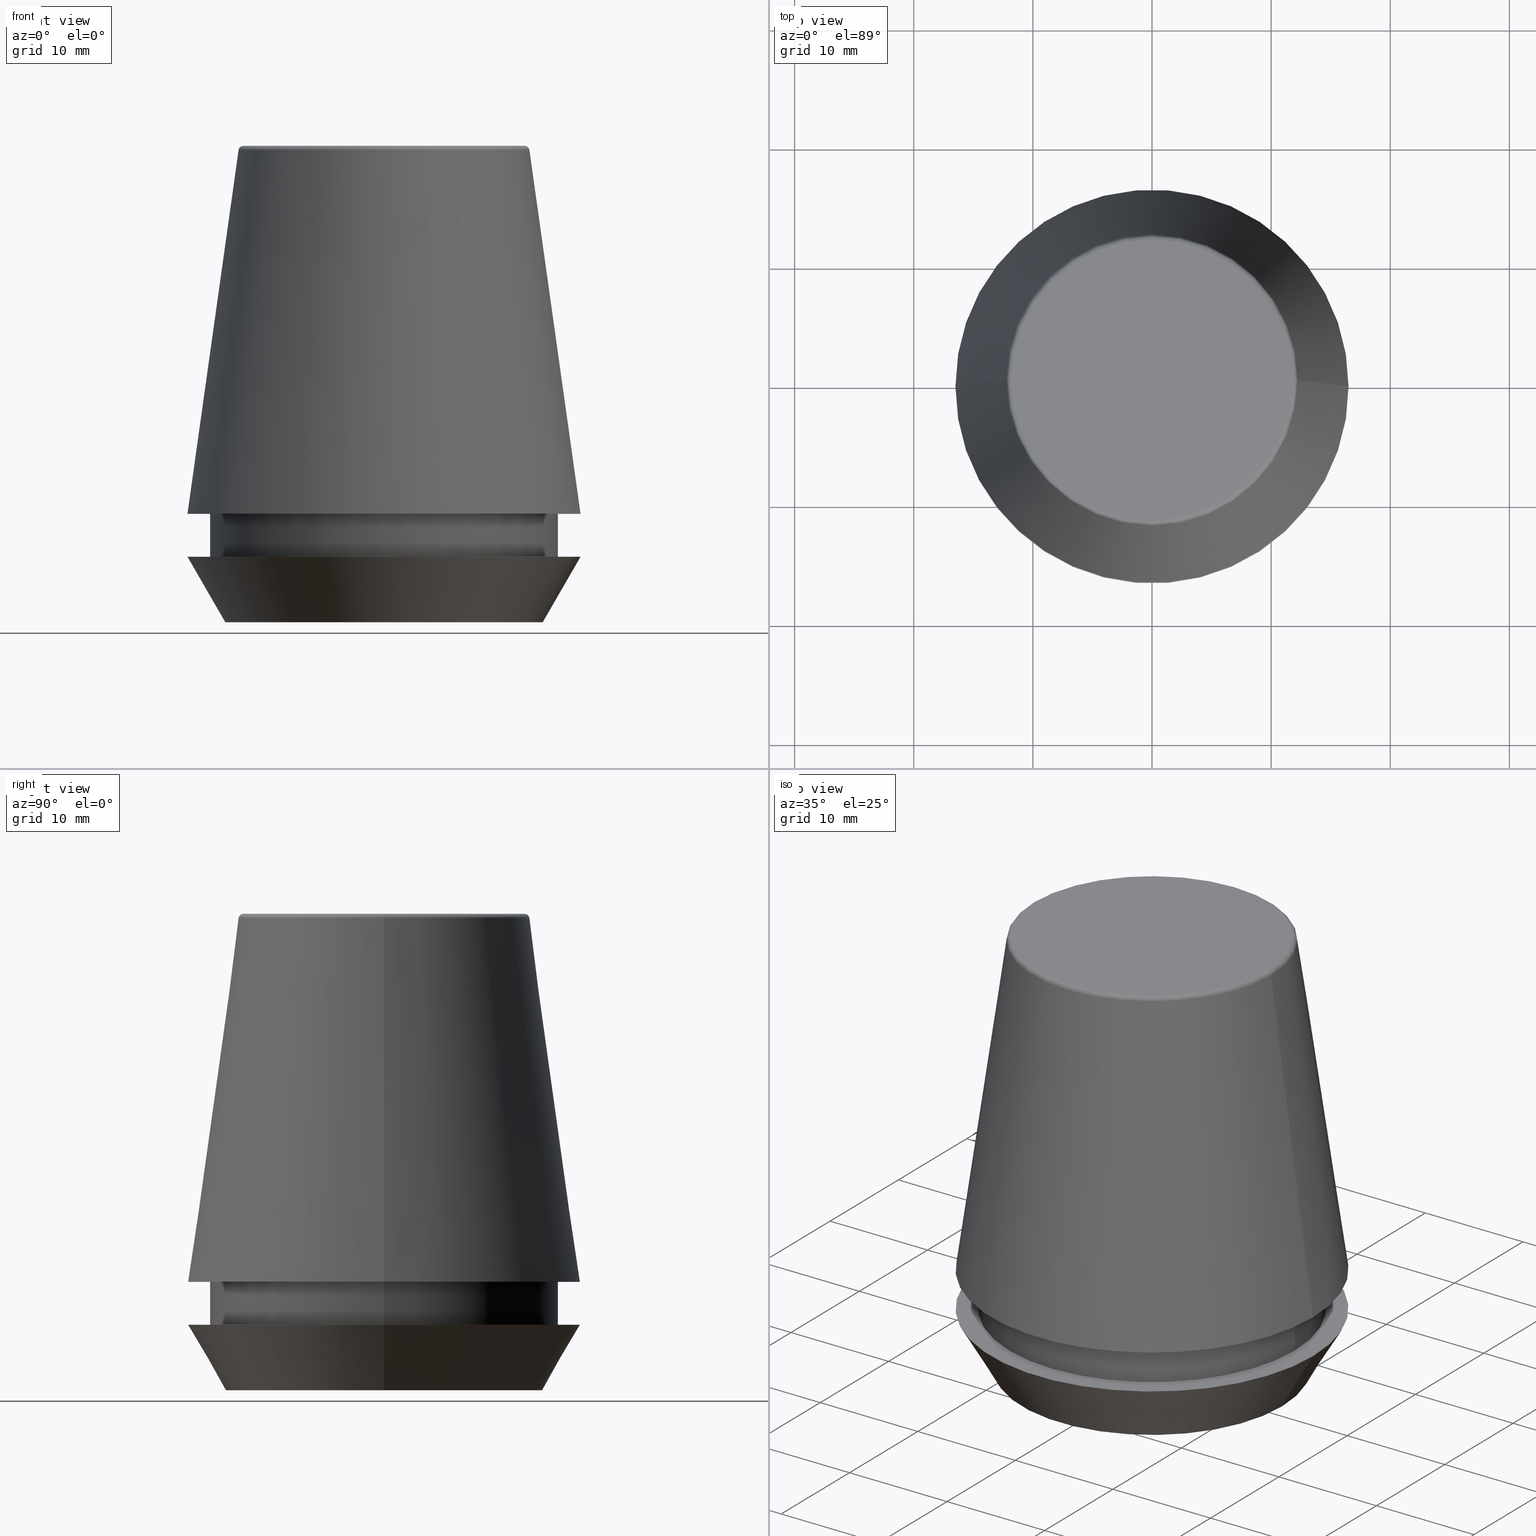
[diagram: canonical four-view strip — front | top / right | iso, engineering-drawing reading convention]
A machine part, canonical four-view strip (front | top / right | iso — engineering-drawing reading convention). The complete STEP part file that produces these views, byte-faithful:
ISO-10303-21;
HEADER;
FILE_DESCRIPTION (( 'STEP AP203' ),
    '1' );
FILE_NAME ('TAP COLLET ER 32G  4.5 X 3.4.STEP',
    '2019-04-09T10:44:10',
    ( '' ),
    ( '' ),
    'SwSTEP 2.0',
    'SolidWorks 2014',
    '' );
FILE_SCHEMA (( 'CONFIG_CONTROL_DESIGN' ));
ENDSEC;

DATA;
#1 = EDGE_LOOP ( 'NONE', ( #369, #69 ) ) ;
#2 = CIRCLE ( 'NONE', #347, 14.60000000000000000 ) ;
#3 = CIRCLE ( 'NONE', #355, 16.50000000000000000 ) ;
#4 = PRODUCT_RELATED_PRODUCT_CATEGORY ( 'detail', '', ( #312 ) ) ;
#5 = CARTESIAN_POINT ( 'NONE',  ( -11.80989888411031400, 1.446295486667959300E-015, 39.60000000000000100 ) ) ;
#6 = CYLINDRICAL_SURFACE ( 'NONE', #127, 14.60000000000000000 ) ;
#7 = UNCERTAINTY_MEASURE_WITH_UNIT (LENGTH_MEASURE( 1.000000000000000100E-005 ), #16, 'distance_accuracy_value', 'NONE');
#8 = ORIENTED_EDGE ( 'NONE', *, *, #207, .T. ) ;
#9 = ORIENTED_EDGE ( 'NONE', *, *, #250, .F. ) ;
#10 = DIRECTION ( 'NONE',  ( 0.0000000000000000000, 0.0000000000000000000, -1.000000000000000000 ) ) ;
#11 = ORIENTED_EDGE ( 'NONE', *, *, #143, .T. ) ;
#12 = AXIS2_PLACEMENT_3D ( 'NONE', #77, #336, #301 ) ;
#13 = SECURITY_CLASSIFICATION_LEVEL ( 'unclassified' ) ;
#14 = CARTESIAN_POINT ( 'NONE',  ( 0.0000000000000000000, 0.0000000000000000000, 0.0000000000000000000 ) ) ;
#15 = CARTESIAN_POINT ( 'NONE',  ( 0.0000000000000000000, 0.0000000000000000000, 0.0000000000000000000 ) ) ;
#16 =( LENGTH_UNIT ( ) NAMED_UNIT ( * ) SI_UNIT ( .MILLI., .METRE. ) );
#17 = DIRECTION ( 'NONE',  ( 1.000000000000000000, 0.0000000000000000000, 0.0000000000000000000 ) ) ;
#18 = CARTESIAN_POINT ( 'NONE',  ( 13.32457351945710200, 0.0000000000000000000, 0.0000000000000000000 ) ) ;
#19 = EDGE_CURVE ( 'NONE', #27, #129, #202, .T. ) ;
#20 = APPLICATION_PROTOCOL_DEFINITION ( 'international standard', 'config_control_design', 1994, #200 ) ;
#21 = PERSON_AND_ORGANIZATION ( #126, #102 ) ;
#22 = EDGE_CURVE ( 'NONE', #27, #234, #117, .T. ) ;
#23 = EDGE_LOOP ( 'NONE', ( #9, #97 ) ) ;
#24 = DIRECTION ( 'NONE',  ( -1.000000000000000000, 1.224646799147352500E-016, 0.0000000000000000000 ) ) ;
#25 = ADVANCED_FACE ( 'NONE', ( #273, #328 ), #227, .F. ) ;
#26 = DIRECTION ( 'NONE',  ( 1.000000000000000000, 0.0000000000000000000, 0.0000000000000000000 ) ) ;
#27 = VERTEX_POINT ( 'NONE', #106 ) ;
#28 = ADVANCED_FACE ( 'NONE', ( #31 ), #252, .T. ) ;
#29 = AXIS2_PLACEMENT_3D ( 'NONE', #73, #275, #105 ) ;
#30 = CARTESIAN_POINT ( 'NONE',  ( 12.20600611160694300, 1.757755848304969800E-015, 39.65566924038402900 ) ) ;
#31 = FACE_OUTER_BOUND ( 'NONE', #344, .T. ) ;
#32 = ADVANCED_FACE ( 'NONE', ( #109 ), #325, .T. ) ;
#33 = AXIS2_PLACEMENT_3D ( 'NONE', #108, #299, #135 ) ;
#34 = SECURITY_CLASSIFICATION ( '', '', #13 ) ;
#35 = CARTESIAN_POINT ( 'NONE',  ( 0.0000000000000000000, 0.0000000000000000000, 0.0000000000000000000 ) ) ;
#36 = DIRECTION ( 'NONE',  ( 1.000000000000000000, 0.0000000000000000000, 0.0000000000000000000 ) ) ;
#37 = VECTOR ( 'NONE', #49, 999.9999999999998900 ) ;
#38 = ORIENTED_EDGE ( 'NONE', *, *, #191, .F. ) ;
#39 = AXIS2_PLACEMENT_3D ( 'NONE', #79, #278, #111 ) ;
#40 = APPROVAL_DATE_TIME ( #120, #341 ) ;
#41 = EDGE_CURVE ( 'NONE', #234, #148, #266, .T. ) ;
#42 = CC_DESIGN_PERSON_AND_ORGANIZATION_ASSIGNMENT ( #339, #365, ( #160 ) ) ;
#43 = CARTESIAN_POINT ( 'NONE',  ( -14.60000000000000000, 1.787984326755135800E-015, 9.099999999999997900 ) ) ;
#44 = VERTEX_POINT ( 'NONE', #45 ) ;
#45 = CARTESIAN_POINT ( 'NONE',  ( -16.50032537154048700, 0.0000000000000000000, 9.099999999999997900 ) ) ;
#46 = DATE_TIME_ROLE ( 'classification_date' ) ;
#47 = AXIS2_PLACEMENT_3D ( 'NONE', #366, #48, #258 ) ;
#48 = DIRECTION ( 'NONE',  ( 0.0000000000000000000, -0.0000000000000000000, 1.000000000000000000 ) ) ;
#49 = DIRECTION ( 'NONE',  ( 0.4999999999999947300, 0.0000000000000000000, 0.8660254037844418200 ) ) ;
#50 =( NAMED_UNIT ( * ) SI_UNIT ( $, .STERADIAN. ) SOLID_ANGLE_UNIT ( ) );
#51 = PRODUCT_DEFINITION ( 'UNKNOWN', '', #160, #326 ) ;
#52 = APPROVAL_PERSON_ORGANIZATION ( #128, #341, #168 ) ;
#53 = APPROVAL_ROLE ( '' ) ;
#54 = EDGE_LOOP ( 'NONE', ( #213, #112, #103, #96 ) ) ;
#55 = EDGE_LOOP ( 'NONE', ( #271, #306, #337, #295 ) ) ;
#56 = COORDINATED_UNIVERSAL_TIME_OFFSET ( 5, 30, .AHEAD. ) ;
#57 = CC_DESIGN_PERSON_AND_ORGANIZATION_ASSIGNMENT ( #21, #371, ( #312 ) ) ;
#58 = AXIS2_PLACEMENT_3D ( 'NONE', #342, #264, #284 ) ;
#59 = ADVANCED_FACE ( 'NONE', ( #334 ), #153, .F. ) ;
#60 = COORDINATED_UNIVERSAL_TIME_OFFSET ( 5, 30, .AHEAD. ) ;
#61 = DIRECTION ( 'NONE',  ( -0.0000000000000000000, -0.0000000000000000000, 1.000000000000000000 ) ) ;
#62 = AXIS2_PLACEMENT_3D ( 'NONE', #14, #277, #256 ) ;
#63 = DIRECTION ( 'NONE',  ( -0.1391731009600586900, 0.0000000000000000000, -0.9902680687415712500 ) ) ;
#64 = ORIENTED_EDGE ( 'NONE', *, *, #154, .T. ) ;
#65 = LOCAL_TIME ( 16, 14, 10.00000000000000000, #140 ) ;
#66 = DIRECTION ( 'NONE',  ( 0.0000000000000000000, 0.0000000000000000000, -1.000000000000000000 ) ) ;
#67 = AXIS2_PLACEMENT_3D ( 'NONE', #367, #198, #17 ) ;
#68 = LOCAL_TIME ( 16, 14, 10.00000000000000000, #176 ) ;
#69 = ORIENTED_EDGE ( 'NONE', *, *, #217, .F. ) ;
#70 = AXIS2_PLACEMENT_3D ( 'NONE', #335, #300, #137 ) ;
#71 = FACE_OUTER_BOUND ( 'NONE', #205, .T. ) ;
#72 = ORIENTED_EDGE ( 'NONE', *, *, #197, .F. ) ;
#73 = CARTESIAN_POINT ( 'NONE',  ( 0.0000000000000000000, 0.0000000000000000000, 39.65566924038402900 ) ) ;
#74 = CARTESIAN_POINT ( 'NONE',  ( 0.0000000000000000000, 0.0000000000000000000, 39.60000000000000100 ) ) ;
#75 = AXIS2_PLACEMENT_3D ( 'NONE', #375, #203, #26 ) ;
#76 = APPROVAL_ROLE ( '' ) ;
#77 = CARTESIAN_POINT ( 'NONE',  ( 0.0000000000000000000, 0.0000000000000000000, 39.60000000000000100 ) ) ;
#78 = APPLICATION_CONTEXT ( 'configuration controlled 3d designs of mechanical parts and assemblies' ) ;
#79 = CARTESIAN_POINT ( 'NONE',  ( 0.0000000000000000000, 0.0000000000000000000, 5.500000000000005300 ) ) ;
#80 = AXIS2_PLACEMENT_3D ( 'NONE', #113, #309, #141 ) ;
#81 = CIRCLE ( 'NONE', #33, 12.20600611160694300 ) ;
#82 = LINE ( 'NONE', #121, #91 ) ;
#83 = ORIENTED_EDGE ( 'NONE', *, *, #313, .F. ) ;
#84 = ORIENTED_EDGE ( 'NONE', *, *, #41, .T. ) ;
#85 = CARTESIAN_POINT ( 'NONE',  ( 0.0000000000000000000, 0.0000000000000000000, 5.500000000000005300 ) ) ;
#86 = DIRECTION ( 'NONE',  ( 0.1391731009600586900, 1.704378926181473100E-017, -0.9902680687415712500 ) ) ;
#87 = ORIENTED_EDGE ( 'NONE', *, *, #313, .T. ) ;
#88 = CC_DESIGN_PERSON_AND_ORGANIZATION_ASSIGNMENT ( #136, #167, ( #51 ) ) ;
#89 = CARTESIAN_POINT ( 'NONE',  ( -14.60000000000000000, 1.787984326755135800E-015, 5.500000000000005300 ) ) ;
#90 = AXIS2_PLACEMENT_3D ( 'NONE', #364, #10, #224 ) ;
#91 = VECTOR ( 'NONE', #63, 1000.000000000000000 ) ;
#92 = DIRECTION ( 'NONE',  ( -0.0000000000000000000, -0.0000000000000000000, 1.000000000000000000 ) ) ;
#93 = LINE ( 'NONE', #146, #158 ) ;
#94 = ADVANCED_FACE ( 'NONE', ( #95 ), #188, .T. ) ;
#95 = FACE_OUTER_BOUND ( 'NONE', #297, .T. ) ;
#96 = ORIENTED_EDGE ( 'NONE', *, *, #245, .F. ) ;
#97 = ORIENTED_EDGE ( 'NONE', *, *, #180, .F. ) ;
#98 = DIRECTION ( 'NONE',  ( -0.0000000000000000000, -0.0000000000000000000, 1.000000000000000000 ) ) ;
#99 = DIRECTION ( 'NONE',  ( 1.000000000000000000, 0.0000000000000000000, 0.0000000000000000000 ) ) ;
#100 = ORIENTED_EDGE ( 'NONE', *, *, #180, .T. ) ;
#101 = APPROVAL ( #230, 'UNSPECIFIED' ) ;
#102 = ORGANIZATION ( 'UNSPECIFIED', 'UNSPECIFIED', '' ) ;
#103 = ORIENTED_EDGE ( 'NONE', *, *, #170, .T. ) ;
#104 = DIRECTION ( 'NONE',  ( 0.0000000000000000000, 0.0000000000000000000, -1.000000000000000000 ) ) ;
#105 = DIRECTION ( 'NONE',  ( 1.000000000000000000, 0.0000000000000000000, 0.0000000000000000000 ) ) ;
#106 = CARTESIAN_POINT ( 'NONE',  ( 13.32457351945710200, 0.0000000000000000000, 0.0000000000000000000 ) ) ;
#107 = AXIS2_PLACEMENT_3D ( 'NONE', #15, #259, #169 ) ;
#108 = CARTESIAN_POINT ( 'NONE',  ( 0.0000000000000000000, 0.0000000000000000000, 39.65566924038402900 ) ) ;
#109 = FACE_OUTER_BOUND ( 'NONE', #358, .T. ) ;
#110 = DIRECTION ( 'NONE',  ( -0.0000000000000000000, -0.0000000000000000000, 1.000000000000000000 ) ) ;
#111 = DIRECTION ( 'NONE',  ( 1.000000000000000000, 0.0000000000000000000, 0.0000000000000000000 ) ) ;
#112 = ORIENTED_EDGE ( 'NONE', *, *, #316, .T. ) ;
#113 = CARTESIAN_POINT ( 'NONE',  ( 0.0000000000000000000, 0.0000000000000000000, 9.099999999999997900 ) ) ;
#114 = ORIENTED_EDGE ( 'NONE', *, *, #189, .F. ) ;
#115 = ADVANCED_FACE ( 'NONE', ( #177 ), #249, .T. ) ;
#116 = DIRECTION ( 'NONE',  ( 0.0000000000000000000, 0.0000000000000000000, -1.000000000000000000 ) ) ;
#117 = LINE ( 'NONE', #18, #37 ) ;
#118 = AXIS2_PLACEMENT_3D ( 'NONE', #165, #329, #104 ) ;
#119 = ORIENTED_EDGE ( 'NONE', *, *, #22, .T. ) ;
#120 = DATE_AND_TIME ( #201, #272 ) ;
#121 = CARTESIAN_POINT ( 'NONE',  ( -16.50032537154048700, 0.0000000000000000000, 9.099999999999997900 ) ) ;
#122 = DIRECTION ( 'NONE',  ( 1.000000000000000000, 0.0000000000000000000, 0.0000000000000000000 ) ) ;
#123 = DIRECTION ( 'NONE',  ( -0.0000000000000000000, -0.0000000000000000000, 1.000000000000000000 ) ) ;
#124 = APPROVAL_DATE_TIME ( #204, #361 ) ;
#125 = EDGE_LOOP ( 'NONE', ( #280, #270, #354, #255 ) ) ;
#126 = PERSON ( 'UNSPECIFIED', 'UNSPECIFIED', 'UNSPECIFIED', ('UNSPECIFIED'), ('UNSPECIFIED'), ('UNSPECIFIED') ) ;
#127 = AXIS2_PLACEMENT_3D ( 'NONE', #182, #345, #311 ) ;
#128 = PERSON_AND_ORGANIZATION ( #126, #102 ) ;
#129 = VERTEX_POINT ( 'NONE', #378 ) ;
#130 = ORIENTED_EDGE ( 'NONE', *, *, #170, .F. ) ;
#131 = APPROVAL_PERSON_ORGANIZATION ( #214, #361, #76 ) ;
#132 = AXIS2_PLACEMENT_3D ( 'NONE', #349, #184, #382 ) ;
#133 = DIRECTION ( 'NONE',  ( -1.000000000000000000, 0.0000000000000000000, -0.0000000000000000000 ) ) ;
#134 = DATE_TIME_ROLE ( 'creation_date' ) ;
#135 = DIRECTION ( 'NONE',  ( 1.000000000000000000, 0.0000000000000000000, 0.0000000000000000000 ) ) ;
#136 = PERSON_AND_ORGANIZATION ( #126, #102 ) ;
#137 = DIRECTION ( 'NONE',  ( 1.000000000000000000, 0.0000000000000000000, 0.0000000000000000000 ) ) ;
#138 = CIRCLE ( 'NONE', #29, 12.20600611160694300 ) ;
#139 = VERTEX_POINT ( 'NONE', #30 ) ;
#140 = COORDINATED_UNIVERSAL_TIME_OFFSET ( 5, 30, .AHEAD. ) ;
#141 = DIRECTION ( 'NONE',  ( 1.000000000000000000, 0.0000000000000000000, 0.0000000000000000000 ) ) ;
#142 = ADVANCED_FACE ( 'NONE', ( #161 ), #6, .T. ) ;
#143 = EDGE_CURVE ( 'NONE', #233, #246, #318, .T. ) ;
#144 = ADVANCED_FACE ( 'NONE', ( #305 ), #156, .T. ) ;
#145 = DIRECTION ( 'NONE',  ( -0.0000000000000000000, -0.0000000000000000000, 1.000000000000000000 ) ) ;
#146 = CARTESIAN_POINT ( 'NONE',  ( -14.60000000000000000, 1.787984326755135800E-015, 101.8074564848000400 ) ) ;
#147 = CIRCLE ( 'NONE', #67, 11.80989888411031400 ) ;
#148 = VERTEX_POINT ( 'NONE', #286 ) ;
#149 = DIRECTION ( 'NONE',  ( -0.0000000000000000000, -0.0000000000000000000, 1.000000000000000000 ) ) ;
#150 = ORIENTED_EDGE ( 'NONE', *, *, #189, .T. ) ;
#151 = DIRECTION ( 'NONE',  ( -1.000000000000000000, 0.0000000000000000000, 0.0000000000000000000 ) ) ;
#152 = EDGE_CURVE ( 'NONE', #246, #319, #315, .T. ) ;
#153 = PLANE ( 'NONE',  #327 ) ;
#154 = EDGE_CURVE ( 'NONE', #44, #385, #239, .T. ) ;
#155 = CC_DESIGN_DATE_AND_TIME_ASSIGNMENT ( #283, #46, ( #34 ) ) ;
#156 = CONICAL_SURFACE ( 'NONE', #265, 16.50032537154048700, 0.1396263401595395900 ) ;
#157 = CIRCLE ( 'NONE', #75, 11.80989888411031400 ) ;
#158 = VECTOR ( 'NONE', #240, 1000.000000000000000 ) ;
#159 = ORIENTED_EDGE ( 'NONE', *, *, #19, .F. ) ;
#160 = PRODUCT_DEFINITION_FORMATION_WITH_SPECIFIED_SOURCE ( 'ANY', '', #312, .NOT_KNOWN. ) ;
#161 = FACE_OUTER_BOUND ( 'NONE', #55, .T. ) ;
#162 = CLOSED_SHELL ( 'NONE', ( #32, #144, #142, #115, #376, #59, #28, #343, #236, #25, #94, #263 ) ) ;
#163 = VERTEX_POINT ( 'NONE', #192 ) ;
#164 = DIRECTION ( 'NONE',  ( -0.4999999999999947300, 6.123233995736700700E-017, 0.8660254037844418200 ) ) ;
#165 = CARTESIAN_POINT ( 'NONE',  ( 11.80989888411031400, 0.0000000000000000000, 39.60000000000000100 ) ) ;
#166 = MANIFOLD_SOLID_BREP ( 'Revolve1', #162 ) ;
#167 = PERSON_AND_ORGANIZATION_ROLE ( 'creator' ) ;
#168 = APPROVAL_ROLE ( '' ) ;
#169 = DIRECTION ( 'NONE',  ( 1.000000000000000000, 0.0000000000000000000, 0.0000000000000000000 ) ) ;
#170 = EDGE_CURVE ( 'NONE', #139, #178, #172, .T. ) ;
#171 = MECHANICAL_CONTEXT ( 'NONE', #78, 'mechanical' ) ;
#172 = CIRCLE ( 'NONE', #118, 0.4000000000000045200 ) ;
#173 = EDGE_CURVE ( 'NONE', #319, #246, #2, .T. ) ;
#174 = CIRCLE ( 'NONE', #132, 13.32457351945710200 ) ;
#175 = PRODUCT_DEFINITION_SHAPE ( 'NONE', 'NONE',  #51 ) ;
#176 = COORDINATED_UNIVERSAL_TIME_OFFSET ( 5, 30, .AHEAD. ) ;
#177 = FACE_OUTER_BOUND ( 'NONE', #248, .T. ) ;
#178 = VERTEX_POINT ( 'NONE', #314 ) ;
#179 = CARTESIAN_POINT ( 'NONE',  ( 16.50032537154048700, 2.020707065114692300E-015, 9.099999999999997900 ) ) ;
#180 = EDGE_CURVE ( 'NONE', #190, #233, #302, .T. ) ;
#181 = ORIENTED_EDGE ( 'NONE', *, *, #152, .T. ) ;
#182 = CARTESIAN_POINT ( 'NONE',  ( 0.0000000000000000000, 0.0000000000000000000, 101.8074564848000400 ) ) ;
#183 = AXIS2_PLACEMENT_3D ( 'NONE', #223, #298, #133 ) ;
#184 = DIRECTION ( 'NONE',  ( -0.0000000000000000000, -0.0000000000000000000, 1.000000000000000000 ) ) ;
#185 = SHAPE_DEFINITION_REPRESENTATION ( #175, #320 ) ;
#186 = CARTESIAN_POINT ( 'NONE',  ( 0.0000000000000000000, 0.0000000000000000000, 9.099999999999997900 ) ) ;
#187 = DIRECTION ( 'NONE',  ( 0.0000000000000000000, -0.0000000000000000000, 1.000000000000000000 ) ) ;
#188 = CONICAL_SURFACE ( 'NONE', #331, 16.50032537154048700, 0.1396263401595395900 ) ;
#189 = EDGE_CURVE ( 'NONE', #148, #234, #3, .T. ) ;
#190 = VERTEX_POINT ( 'NONE', #89 ) ;
#191 = EDGE_CURVE ( 'NONE', #129, #27, #174, .T. ) ;
#192 = CARTESIAN_POINT ( 'NONE',  ( -12.20600611160694300, 0.0000000000000000000, 39.65566924038402900 ) ) ;
#193 = CARTESIAN_POINT ( 'NONE',  ( 0.0000000000000000000, 0.0000000000000000000, 9.099999999999997900 ) ) ;
#194 = CARTESIAN_POINT ( 'NONE',  ( 16.50032537154048700, 2.020707065114692300E-015, 9.099999999999997900 ) ) ;
#195 = ORIENTED_EDGE ( 'NONE', *, *, #238, .T. ) ;
#196 = PERSON_AND_ORGANIZATION_ROLE ( 'design_supplier' ) ;
#197 = EDGE_CURVE ( 'NONE', #190, #319, #93, .T. ) ;
#198 = DIRECTION ( 'NONE',  ( -0.0000000000000000000, -0.0000000000000000000, 1.000000000000000000 ) ) ;
#199 = ORIENTED_EDGE ( 'NONE', *, *, #191, .T. ) ;
#200 = APPLICATION_CONTEXT ( 'configuration controlled 3d designs of mechanical parts and assemblies' ) ;
#201 = CALENDAR_DATE ( 2019, 9, 4 ) ;
#202 = CIRCLE ( 'NONE', #107, 13.32457351945710200 ) ;
#203 = DIRECTION ( 'NONE',  ( -0.0000000000000000000, -0.0000000000000000000, 1.000000000000000000 ) ) ;
#204 = DATE_AND_TIME ( #274, #353 ) ;
#205 = EDGE_LOOP ( 'NONE', ( #72, #100, #11, #244 ) ) ;
#206 = CARTESIAN_POINT ( 'NONE',  ( 0.0000000000000000000, 0.0000000000000000000, 9.099999999999997900 ) ) ;
#207 = EDGE_CURVE ( 'NONE', #163, #351, #304, .T. ) ;
#208 = DIRECTION ( 'NONE',  ( -1.000000000000000000, 0.0000000000000000000, 0.0000000000000000000 ) ) ;
#209 = DATE_AND_TIME ( #279, #357 ) ;
#210 = DIRECTION ( 'NONE',  ( 1.000000000000000000, 0.0000000000000000000, 0.0000000000000000000 ) ) ;
#211 = ORIENTED_EDGE ( 'NONE', *, *, #173, .T. ) ;
#212 = FACE_BOUND ( 'NONE', #23, .T. ) ;
#213 = ORIENTED_EDGE ( 'NONE', *, *, #207, .F. ) ;
#214 = PERSON_AND_ORGANIZATION ( #126, #102 ) ;
#215 = EDGE_CURVE ( 'NONE', #163, #44, #82, .T. ) ;
#216 = CARTESIAN_POINT ( 'NONE',  ( 0.0000000000000000000, 0.0000000000000000000, 0.0000000000000000000 ) ) ;
#217 = EDGE_CURVE ( 'NONE', #385, #44, #303, .T. ) ;
#218 = APPROVAL_DATE_TIME ( #285, #101 ) ;
#219 = CC_DESIGN_PERSON_AND_ORGANIZATION_ASSIGNMENT ( #290, #196, ( #160 ) ) ;
#220 = TOROIDAL_SURFACE ( 'NONE', #12, 11.80989888411031400, 0.4000000000000026900 ) ;
#221 = AXIS2_PLACEMENT_3D ( 'NONE', #5, #346, #24 ) ;
#222 = PERSON_AND_ORGANIZATION ( #126, #102 ) ;
#223 = CARTESIAN_POINT ( 'NONE',  ( 0.0000000000000000000, 16.50000000000000000, 5.500000000000002700 ) ) ;
#224 = DIRECTION ( 'NONE',  ( -1.000000000000000000, 0.0000000000000000000, -0.0000000000000000000 ) ) ;
#225 = PERSON_AND_ORGANIZATION_ROLE ( 'classification_officer' ) ;
#226 = CARTESIAN_POINT ( 'NONE',  ( 14.60000000000000000, 0.0000000000000000000, 9.099999999999997900 ) ) ;
#227 = PLANE ( 'NONE',  #47 ) ;
#228 = EDGE_CURVE ( 'NONE', #178, #351, #157, .T. ) ;
#229 =( NAMED_UNIT ( * ) PLANE_ANGLE_UNIT ( ) SI_UNIT ( $, .RADIAN. ) );
#230 = APPROVAL_STATUS ( 'not_yet_approved' ) ;
#231 = EDGE_CURVE ( 'NONE', #139, #385, #381, .T. ) ;
#232 = CIRCLE ( 'NONE', #39, 14.60000000000000000 ) ;
#233 = VERTEX_POINT ( 'NONE', #242 ) ;
#234 = VERTEX_POINT ( 'NONE', #235 ) ;
#235 = CARTESIAN_POINT ( 'NONE',  ( 16.50000000000000000, 0.0000000000000000000, 5.500000000000005300 ) ) ;
#236 = ADVANCED_FACE ( 'NONE', ( #71 ), #372, .T. ) ;
#237 = CC_DESIGN_DATE_AND_TIME_ASSIGNMENT ( #209, #134, ( #51 ) ) ;
#238 = EDGE_CURVE ( 'NONE', #139, #163, #81, .T. ) ;
#239 = CIRCLE ( 'NONE', #324, 16.50032537154048700 ) ;
#240 = DIRECTION ( 'NONE',  ( -0.0000000000000000000, -0.0000000000000000000, 1.000000000000000000 ) ) ;
#241 = FACE_OUTER_BOUND ( 'NONE', #54, .T. ) ;
#242 = CARTESIAN_POINT ( 'NONE',  ( 14.60000000000000000, 0.0000000000000000000, 5.500000000000005300 ) ) ;
#243 = VECTOR ( 'NONE', #145, 1000.000000000000000 ) ;
#244 = ORIENTED_EDGE ( 'NONE', *, *, #173, .F. ) ;
#245 = EDGE_CURVE ( 'NONE', #351, #178, #147, .T. ) ;
#246 = VERTEX_POINT ( 'NONE', #226 ) ;
#247 = DIRECTION ( 'NONE',  ( 1.000000000000000000, 0.0000000000000000000, 0.0000000000000000000 ) ) ;
#248 = EDGE_LOOP ( 'NONE', ( #350, #87, #310, #373 ) ) ;
#249 = CONICAL_SURFACE ( 'NONE', #262, 13.32457351945710200, 0.5235987755982927100 ) ;
#250 = EDGE_CURVE ( 'NONE', #233, #190, #232, .T. ) ;
#251 = APPROVAL_PERSON_ORGANIZATION ( #317, #101, #53 ) ;
#252 = CONICAL_SURFACE ( 'NONE', #62, 13.32457351945710200, 0.5235987755982927100 ) ;
#253 = EDGE_LOOP ( 'NONE', ( #84, #150 ) ) ;
#254 = CARTESIAN_POINT ( 'NONE',  ( -11.80989888411031400, 1.470550059081603400E-015, 40.00000000000000700 ) ) ;
#255 = ORIENTED_EDGE ( 'NONE', *, *, #215, .F. ) ;
#256 = DIRECTION ( 'NONE',  ( 1.000000000000000000, 0.0000000000000000000, 0.0000000000000000000 ) ) ;
#257 = APPROVAL_STATUS ( 'not_yet_approved' ) ;
#258 = DIRECTION ( 'NONE',  ( 1.000000000000000000, 0.0000000000000000000, 0.0000000000000000000 ) ) ;
#259 = DIRECTION ( 'NONE',  ( -0.0000000000000000000, -0.0000000000000000000, 1.000000000000000000 ) ) ;
#260 = PLANE ( 'NONE',  #183 ) ;
#261 = CC_DESIGN_APPROVAL ( #341, ( #160 ) ) ;
#262 = AXIS2_PLACEMENT_3D ( 'NONE', #35, #98, #247 ) ;
#263 = ADVANCED_FACE ( 'NONE', ( #241 ), #220, .T. ) ;
#264 = DIRECTION ( 'NONE',  ( -0.0000000000000000000, -0.0000000000000000000, 1.000000000000000000 ) ) ;
#265 = AXIS2_PLACEMENT_3D ( 'NONE', #206, #116, #208 ) ;
#266 = CIRCLE ( 'NONE', #377, 16.50000000000000000 ) ;
#267 = CARTESIAN_POINT ( 'NONE',  ( 14.60000000000000000, 0.0000000000000000000, 101.8074564848000400 ) ) ;
#268 = ORIENTED_EDGE ( 'NONE', *, *, #228, .F. ) ;
#269 = CARTESIAN_POINT ( 'NONE',  ( 0.0000000000000000000, 0.0000000000000000000, 5.500000000000005300 ) ) ;
#270 = ORIENTED_EDGE ( 'NONE', *, *, #231, .T. ) ;
#271 = ORIENTED_EDGE ( 'NONE', *, *, #250, .T. ) ;
#272 = LOCAL_TIME ( 16, 14, 10.00000000000000000, #348 ) ;
#273 = FACE_OUTER_BOUND ( 'NONE', #1, .T. ) ;
#274 = CALENDAR_DATE ( 2019, 9, 4 ) ;
#275 = DIRECTION ( 'NONE',  ( -0.0000000000000000000, -0.0000000000000000000, 1.000000000000000000 ) ) ;
#276 = ORIENTED_EDGE ( 'NONE', *, *, #215, .T. ) ;
#277 = DIRECTION ( 'NONE',  ( -0.0000000000000000000, -0.0000000000000000000, 1.000000000000000000 ) ) ;
#278 = DIRECTION ( 'NONE',  ( -0.0000000000000000000, -0.0000000000000000000, 1.000000000000000000 ) ) ;
#279 = CALENDAR_DATE ( 2019, 9, 4 ) ;
#280 = ORIENTED_EDGE ( 'NONE', *, *, #238, .F. ) ;
#281 = FACE_OUTER_BOUND ( 'NONE', #253, .T. ) ;
#282 = ORIENTED_EDGE ( 'NONE', *, *, #231, .F. ) ;
#283 = DATE_AND_TIME ( #362, #65 ) ;
#284 = DIRECTION ( 'NONE',  ( 1.000000000000000000, 0.0000000000000000000, 0.0000000000000000000 ) ) ;
#285 = DATE_AND_TIME ( #368, #68 ) ;
#286 = CARTESIAN_POINT ( 'NONE',  ( -16.50000000000000000, 2.020667218593133100E-015, 5.500000000000005300 ) ) ;
#287 = DIRECTION ( 'NONE',  ( 1.000000000000000000, 0.0000000000000000000, 0.0000000000000000000 ) ) ;
#288 = CC_DESIGN_PERSON_AND_ORGANIZATION_ASSIGNMENT ( #222, #225, ( #34 ) ) ;
#289 = LINE ( 'NONE', #363, #359 ) ;
#290 = PERSON_AND_ORGANIZATION ( #126, #102 ) ;
#291 = CARTESIAN_POINT ( 'NONE',  ( 0.0000000000000000000, 0.0000000000000000000, 9.099999999999997900 ) ) ;
#292 = VECTOR ( 'NONE', #86, 1000.000000000000000 ) ;
#293 = AXIS2_PLACEMENT_3D ( 'NONE', #291, #123, #99 ) ;
#294 = ORIENTED_EDGE ( 'NONE', *, *, #228, .T. ) ;
#295 = ORIENTED_EDGE ( 'NONE', *, *, #143, .F. ) ;
#296 = AXIS2_PLACEMENT_3D ( 'NONE', #74, #110, #333 ) ;
#297 = EDGE_LOOP ( 'NONE', ( #282, #323, #276, #64 ) ) ;
#298 = DIRECTION ( 'NONE',  ( 0.0000000000000000000, 0.0000000000000000000, -1.000000000000000000 ) ) ;
#299 = DIRECTION ( 'NONE',  ( -0.0000000000000000000, -0.0000000000000000000, 1.000000000000000000 ) ) ;
#300 = DIRECTION ( 'NONE',  ( 0.0000000000000000000, 0.0000000000000000000, 1.000000000000000000 ) ) ;
#301 = DIRECTION ( 'NONE',  ( 1.000000000000000000, 0.0000000000000000000, 0.0000000000000000000 ) ) ;
#302 = CIRCLE ( 'NONE', #352, 14.60000000000000000 ) ;
#303 = CIRCLE ( 'NONE', #80, 16.50032537154048700 ) ;
#304 = CIRCLE ( 'NONE', #221, 0.4000000000000028000 ) ;
#305 = FACE_OUTER_BOUND ( 'NONE', #125, .T. ) ;
#306 = ORIENTED_EDGE ( 'NONE', *, *, #197, .T. ) ;
#307 = EDGE_LOOP ( 'NONE', ( #159, #38 ) ) ;
#308 = EDGE_LOOP ( 'NONE', ( #294, #384 ) ) ;
#309 = DIRECTION ( 'NONE',  ( -0.0000000000000000000, -0.0000000000000000000, 1.000000000000000000 ) ) ;
#310 = ORIENTED_EDGE ( 'NONE', *, *, #41, .F. ) ;
#311 = DIRECTION ( 'NONE',  ( 1.000000000000000000, 0.0000000000000000000, 0.0000000000000000000 ) ) ;
#312 = PRODUCT ( 'TAP COLLET ER 32G  4.5 X 3.4', 'TAP COLLET ER 32G  4.5 X 3.4', '', ( #171 ) ) ;
#313 = EDGE_CURVE ( 'NONE', #129, #148, #289, .T. ) ;
#314 = CARTESIAN_POINT ( 'NONE',  ( 11.80989888411031400, 0.0000000000000000000, 40.00000000000000700 ) ) ;
#315 = CIRCLE ( 'NONE', #293, 14.60000000000000000 ) ;
#316 = EDGE_CURVE ( 'NONE', #163, #139, #138, .T. ) ;
#317 = PERSON_AND_ORGANIZATION ( #126, #102 ) ;
#318 = LINE ( 'NONE', #267, #243 ) ;
#319 = VERTEX_POINT ( 'NONE', #43 ) ;
#320 = ADVANCED_BREP_SHAPE_REPRESENTATION ( 'TAP COLLET ER 32G  4.5 X 3.4', ( #166, #70 ), #374 ) ;
#321 = CARTESIAN_POINT ( 'NONE',  ( 0.0000000000000000000, 0.0000000000000000000, 9.099999999999997900 ) ) ;
#322 = CARTESIAN_POINT ( 'NONE',  ( 0.0000000000000000000, 0.0000000000000000000, 5.500000000000005300 ) ) ;
#323 = ORIENTED_EDGE ( 'NONE', *, *, #316, .F. ) ;
#324 = AXIS2_PLACEMENT_3D ( 'NONE', #321, #61, #379 ) ;
#325 = TOROIDAL_SURFACE ( 'NONE', #296, 11.80989888411031400, 0.4000000000000026900 ) ;
#326 = DESIGN_CONTEXT ( 'detailed design', #200, 'design' ) ;
#327 = AXIS2_PLACEMENT_3D ( 'NONE', #216, #187, #386 ) ;
#328 = FACE_BOUND ( 'NONE', #360, .T. ) ;
#329 = DIRECTION ( 'NONE',  ( 0.0000000000000000000, -1.000000000000000000, 0.0000000000000000000 ) ) ;
#330 = PLANE ( 'NONE',  #90 ) ;
#331 = AXIS2_PLACEMENT_3D ( 'NONE', #186, #66, #151 ) ;
#332 = APPROVAL_STATUS ( 'not_yet_approved' ) ;
#333 = DIRECTION ( 'NONE',  ( 1.000000000000000000, 0.0000000000000000000, 0.0000000000000000000 ) ) ;
#334 = FACE_OUTER_BOUND ( 'NONE', #307, .T. ) ;
#335 = CARTESIAN_POINT ( 'NONE',  ( 0.0000000000000000000, 0.0000000000000000000, 0.0000000000000000000 ) ) ;
#336 = DIRECTION ( 'NONE',  ( -0.0000000000000000000, -0.0000000000000000000, 1.000000000000000000 ) ) ;
#337 = ORIENTED_EDGE ( 'NONE', *, *, #152, .F. ) ;
#338 = APPLICATION_PROTOCOL_DEFINITION ( 'international standard', 'config_control_design', 1994, #78 ) ;
#339 = PERSON_AND_ORGANIZATION ( #126, #102 ) ;
#340 = CC_DESIGN_SECURITY_CLASSIFICATION ( #34, ( #160 ) ) ;
#341 = APPROVAL ( #332, 'UNSPECIFIED' ) ;
#342 = CARTESIAN_POINT ( 'NONE',  ( 0.0000000000000000000, 0.0000000000000000000, 101.8074564848000400 ) ) ;
#343 = ADVANCED_FACE ( 'NONE', ( #212, #281 ), #260, .F. ) ;
#344 = EDGE_LOOP ( 'NONE', ( #83, #199, #119, #114 ) ) ;
#345 = DIRECTION ( 'NONE',  ( -0.0000000000000000000, -0.0000000000000000000, 1.000000000000000000 ) ) ;
#346 = DIRECTION ( 'NONE',  ( 1.224646799147353200E-016, 1.000000000000000000, 0.0000000000000000000 ) ) ;
#347 = AXIS2_PLACEMENT_3D ( 'NONE', #193, #149, #122 ) ;
#348 = COORDINATED_UNIVERSAL_TIME_OFFSET ( 5, 30, .AHEAD. ) ;
#349 = CARTESIAN_POINT ( 'NONE',  ( 0.0000000000000000000, 0.0000000000000000000, 0.0000000000000000000 ) ) ;
#350 = ORIENTED_EDGE ( 'NONE', *, *, #19, .T. ) ;
#351 = VERTEX_POINT ( 'NONE', #254 ) ;
#352 = AXIS2_PLACEMENT_3D ( 'NONE', #85, #380, #210 ) ;
#353 = LOCAL_TIME ( 16, 14, 10.00000000000000000, #56 ) ;
#354 = ORIENTED_EDGE ( 'NONE', *, *, #217, .T. ) ;
#355 = AXIS2_PLACEMENT_3D ( 'NONE', #269, #92, #287 ) ;
#356 = DIRECTION ( 'NONE',  ( -0.0000000000000000000, -0.0000000000000000000, 1.000000000000000000 ) ) ;
#357 = LOCAL_TIME ( 16, 14, 10.00000000000000000, #60 ) ;
#358 = EDGE_LOOP ( 'NONE', ( #195, #8, #268, #130 ) ) ;
#359 = VECTOR ( 'NONE', #164, 999.9999999999998900 ) ;
#360 = EDGE_LOOP ( 'NONE', ( #181, #211 ) ) ;
#361 = APPROVAL ( #257, 'UNSPECIFIED' ) ;
#362 = CALENDAR_DATE ( 2019, 9, 4 ) ;
#363 = CARTESIAN_POINT ( 'NONE',  ( -13.32457351945710200, 1.631789631060672300E-015, 0.0000000000000000000 ) ) ;
#364 = CARTESIAN_POINT ( 'NONE',  ( 0.0000000000000000000, 11.80989888411031400, 40.00000000000000700 ) ) ;
#365 = PERSON_AND_ORGANIZATION_ROLE ( 'creator' ) ;
#366 = CARTESIAN_POINT ( 'NONE',  ( 0.0000000000000000000, 16.50032537154048700, 9.099999999999999600 ) ) ;
#367 = CARTESIAN_POINT ( 'NONE',  ( 0.0000000000000000000, 0.0000000000000000000, 40.00000000000000700 ) ) ;
#368 = CALENDAR_DATE ( 2019, 9, 4 ) ;
#369 = ORIENTED_EDGE ( 'NONE', *, *, #154, .F. ) ;
#370 = CC_DESIGN_APPROVAL ( #101, ( #51 ) ) ;
#371 = PERSON_AND_ORGANIZATION_ROLE ( 'design_owner' ) ;
#372 = CYLINDRICAL_SURFACE ( 'NONE', #58, 14.60000000000000000 ) ;
#373 = ORIENTED_EDGE ( 'NONE', *, *, #22, .F. ) ;
#374 =( GEOMETRIC_REPRESENTATION_CONTEXT ( 3 ) GLOBAL_UNCERTAINTY_ASSIGNED_CONTEXT ( ( #7 ) ) GLOBAL_UNIT_ASSIGNED_CONTEXT ( ( #16, #229, #50 ) ) REPRESENTATION_CONTEXT ( 'NONE', 'WORKASPACE' ) );
#375 = CARTESIAN_POINT ( 'NONE',  ( 0.0000000000000000000, 0.0000000000000000000, 40.00000000000000700 ) ) ;
#376 = ADVANCED_FACE ( 'NONE', ( #383 ), #330, .F. ) ;
#377 = AXIS2_PLACEMENT_3D ( 'NONE', #322, #356, #36 ) ;
#378 = CARTESIAN_POINT ( 'NONE',  ( -13.32457351945710200, 1.826228424826902600E-015, 0.0000000000000000000 ) ) ;
#379 = DIRECTION ( 'NONE',  ( 1.000000000000000000, 0.0000000000000000000, 0.0000000000000000000 ) ) ;
#380 = DIRECTION ( 'NONE',  ( -0.0000000000000000000, -0.0000000000000000000, 1.000000000000000000 ) ) ;
#381 = LINE ( 'NONE', #179, #292 ) ;
#382 = DIRECTION ( 'NONE',  ( 1.000000000000000000, 0.0000000000000000000, 0.0000000000000000000 ) ) ;
#383 = FACE_OUTER_BOUND ( 'NONE', #308, .T. ) ;
#384 = ORIENTED_EDGE ( 'NONE', *, *, #245, .T. ) ;
#385 = VERTEX_POINT ( 'NONE', #194 ) ;
#386 = DIRECTION ( 'NONE',  ( 1.000000000000000000, 0.0000000000000000000, 0.0000000000000000000 ) ) ;
#387 = CC_DESIGN_APPROVAL ( #361, ( #34 ) ) ;
ENDSEC;
END-ISO-10303-21;
